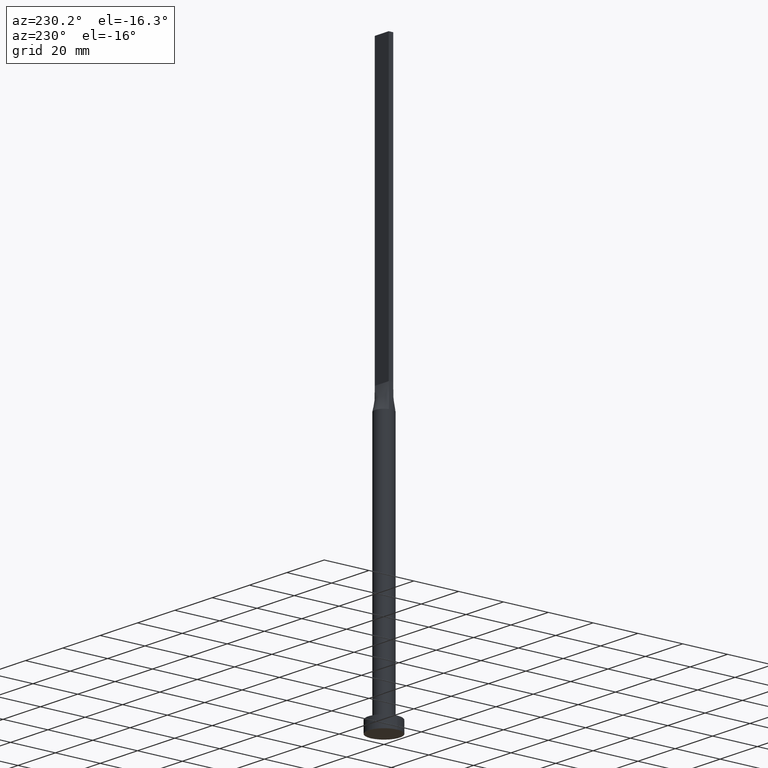
[diagram: clean part render]
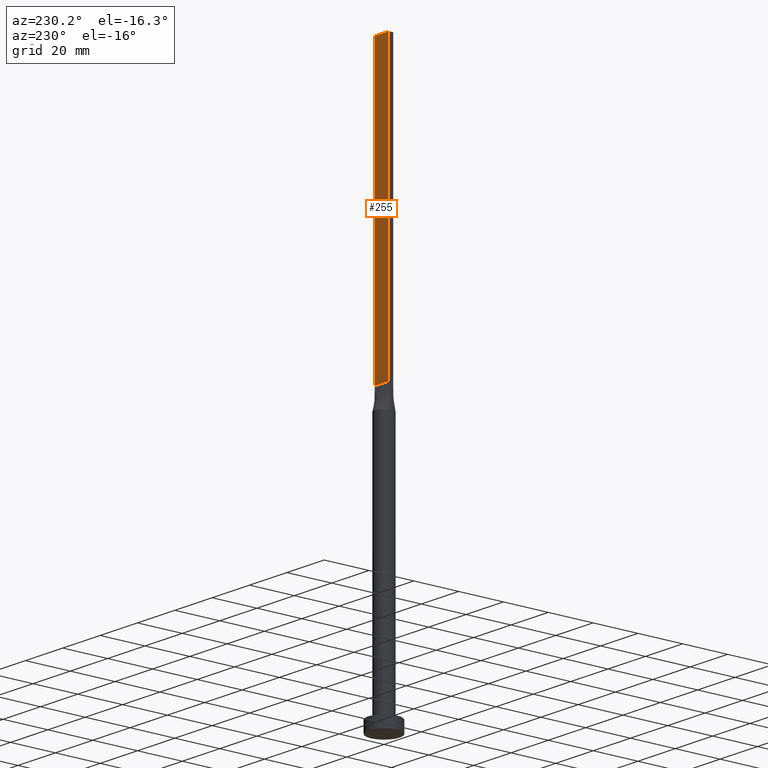
[diagram: same view with one face highlighted and labeled with its STEP entity id]
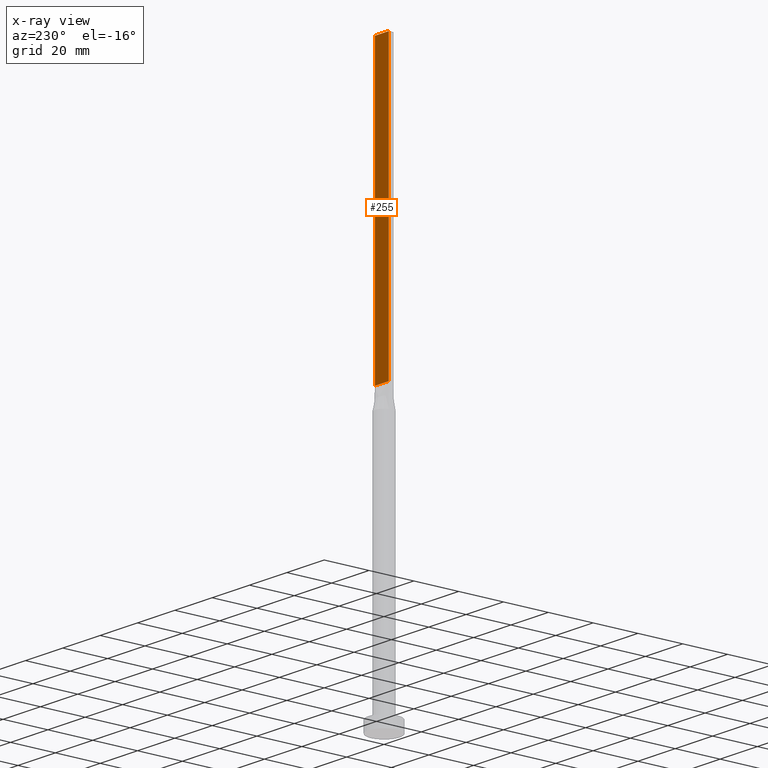
[diagram: x-ray of the same camera — body ghosted, the highlighted face saturated]
A machine part, auxiliary view. The second image highlights one B-rep face of the part: STEP entity #255.
The next image is the same camera in x-ray: the body ghosted, the highlighted face saturated — about 0% of this face is hidden behind the body in this view.
In plain terms, the highlighted planar face has unit normal (0, -1, 0).
Its self-contained STEP definition (entity closure, byte-faithful):
#3 = VECTOR ( 'NONE', #109, 1000.000000000000000 ) ;
#11 = CARTESIAN_POINT ( 'NONE',  ( 3.750000000000000000, 1.000000000000000000, 250.0000000000000000 ) ) ;
#22 = DIRECTION ( 'NONE',  ( -1.000000000000000000, -0.000000000000000000, -0.000000000000000000 ) ) ;
#28 = CARTESIAN_POINT ( 'NONE',  ( 3.750000000000000000, 1.000000000000000000, 125.0000000000000000 ) ) ;
#38 = ORIENTED_EDGE ( 'NONE', *, *, #59, .F. ) ;
#45 = DIRECTION ( 'NONE',  ( -0.000000000000000000, -0.000000000000000000, -1.000000000000000000 ) ) ;
#51 = VECTOR ( 'NONE', #45, 1000.000000000000000 ) ;
#54 = CARTESIAN_POINT ( 'NONE',  ( -3.750000000000000000, 1.000000000000000000, 250.0000000000000000 ) ) ;
#59 = EDGE_CURVE ( 'NONE', #347, #303, #493, .T. ) ;
#78 = DIRECTION ( 'NONE',  ( 0.000000000000000000, -1.000000000000000000, 0.000000000000000000 ) ) ;
#84 = ORIENTED_EDGE ( 'NONE', *, *, #576, .T. ) ;
#89 = EDGE_LOOP ( 'NONE', ( #84, #38, #540, #367 ) ) ;
#107 = DIRECTION ( 'NONE',  ( -0.000000000000000000, -0.000000000000000000, -1.000000000000000000 ) ) ;
#109 = DIRECTION ( 'NONE',  ( -1.000000000000000000, 0.000000000000000000, 0.000000000000000000 ) ) ;
#122 = VERTEX_POINT ( 'NONE', #415 ) ;
#151 = VECTOR ( 'NONE', #22, 1000.000000000000000 ) ;
#166 = CARTESIAN_POINT ( 'NONE',  ( 3.750000000000000000, 1.000000000000000000, 250.0000000000000000 ) ) ;
#169 = DIRECTION ( 'NONE',  ( 0.000000000000000000, -0.000000000000000000, -1.000000000000000000 ) ) ;
#174 = LINE ( 'NONE', #11, #3 ) ;
#180 = AXIS2_PLACEMENT_3D ( 'NONE', #166, #78, #169 ) ;
#186 = CARTESIAN_POINT ( 'NONE',  ( -3.750000000000000000, 1.000000000000000000, 250.0000000000000000 ) ) ;
#189 = CARTESIAN_POINT ( 'NONE',  ( 3.750000000000000000, 1.000000000000000000, 250.0000000000000000 ) ) ;
#204 = PLANE ( 'NONE',  #180 ) ;
#255 = ADVANCED_FACE ( 'NONE', ( #482 ), #204, .F. ) ;
#303 = VERTEX_POINT ( 'NONE', #439 ) ;
#321 = VECTOR ( 'NONE', #107, 1000.000000000000000 ) ;
#333 = EDGE_CURVE ( 'NONE', #122, #347, #174, .T. ) ;
#340 = EDGE_CURVE ( 'NONE', #122, #562, #456, .T. ) ;
#347 = VERTEX_POINT ( 'NONE', #186 ) ;
#367 = ORIENTED_EDGE ( 'NONE', *, *, #340, .T. ) ;
#415 = CARTESIAN_POINT ( 'NONE',  ( 3.750000000000000000, 1.000000000000000000, 250.0000000000000000 ) ) ;
#439 = CARTESIAN_POINT ( 'NONE',  ( -3.750000000000000000, 1.000000000000000000, 125.0000000000000000 ) ) ;
#456 = LINE ( 'NONE', #189, #51 ) ;
#482 = FACE_OUTER_BOUND ( 'NONE', #89, .T. ) ;
#493 = LINE ( 'NONE', #54, #321 ) ;
#508 = LINE ( 'NONE', #553, #151 ) ;
#540 = ORIENTED_EDGE ( 'NONE', *, *, #333, .F. ) ;
#553 = CARTESIAN_POINT ( 'NONE',  ( -3.750000000000000000, 1.000000000000000000, 125.0000000000000000 ) ) ;
#562 = VERTEX_POINT ( 'NONE', #28 ) ;
#576 = EDGE_CURVE ( 'NONE', #562, #303, #508, .T. ) ;